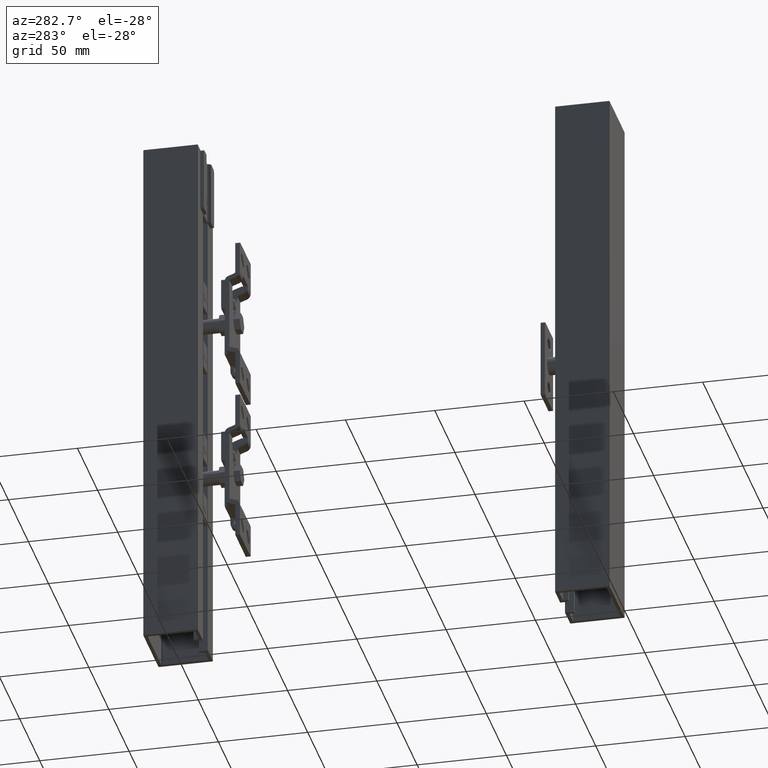
[diagram: clean part render]
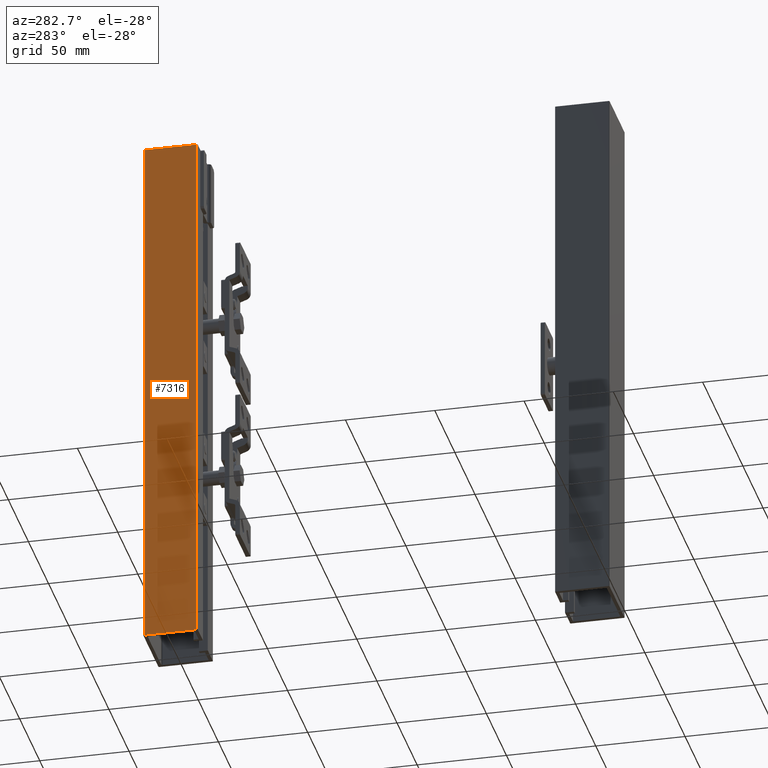
[diagram: same view with one face highlighted and labeled with its STEP entity id]
A machine part, auxiliary view. The second image highlights one B-rep face of the part: STEP entity #7316.
In plain terms, the highlighted planar face has unit normal (-1, -0, 0).
Its self-contained STEP definition (entity closure, byte-faithful):
#300=PLANE('',#7785);
#556=FACE_OUTER_BOUND('',#997,.T.);
#997=EDGE_LOOP('',(#5134,#5135,#5136,#5137));
#1581=LINE('',#10926,#2268);
#1584=LINE('',#10937,#2271);
#1588=LINE('',#10947,#2275);
#1605=LINE('',#10983,#2292);
#2268=VECTOR('',#8614,29.5);
#2271=VECTOR('',#8625,300.);
#2275=VECTOR('',#8635,300.);
#2292=VECTOR('',#8674,29.5);
#3286=VERTEX_POINT('',#10923);
#3287=VERTEX_POINT('',#10925);
#3291=VERTEX_POINT('',#10935);
#3293=VERTEX_POINT('',#10943);
#4022=EDGE_CURVE('',#3286,#3287,#1581,.T.);
#4028=EDGE_CURVE('',#3291,#3286,#1584,.T.);
#4033=EDGE_CURVE('',#3287,#3293,#1588,.T.);
#4051=EDGE_CURVE('',#3293,#3291,#1605,.T.);
#5134=ORIENTED_EDGE('',*,*,#4028,.F.);
#5135=ORIENTED_EDGE('',*,*,#4051,.F.);
#5136=ORIENTED_EDGE('',*,*,#4033,.F.);
#5137=ORIENTED_EDGE('',*,*,#4022,.F.);
#7316=ADVANCED_FACE('',(#556),#300,.T.);
#7785=AXIS2_PLACEMENT_3D('',#10982,#8672,#8673);
#8614=DIRECTION('',(-2.91206039245943E-16,1.,0.));
#8625=DIRECTION('',(0.,0.,-1.));
#8635=DIRECTION('',(0.,0.,1.));
#8672=DIRECTION('center_axis',(-1.,-2.91206039245943E-16,0.));
#8673=DIRECTION('ref_axis',(3.5527136788005E-16,-1.,0.));
#8674=DIRECTION('',(2.91206039245943E-16,-1.,0.));
#10923=CARTESIAN_POINT('',(-19.,-14.75,-150.));
#10925=CARTESIAN_POINT('',(-19.,14.75,-150.));
#10926=CARTESIAN_POINT('',(-19.,15.25,-150.));
#10935=CARTESIAN_POINT('',(-19.,-14.75,150.));
#10937=CARTESIAN_POINT('',(-19.,-14.75,0.));
#10943=CARTESIAN_POINT('',(-19.,14.75,150.));
#10947=CARTESIAN_POINT('',(-19.,14.75,0.));
#10982=CARTESIAN_POINT('Origin',(-19.,15.25,0.));
#10983=CARTESIAN_POINT('',(-19.,15.25,150.));